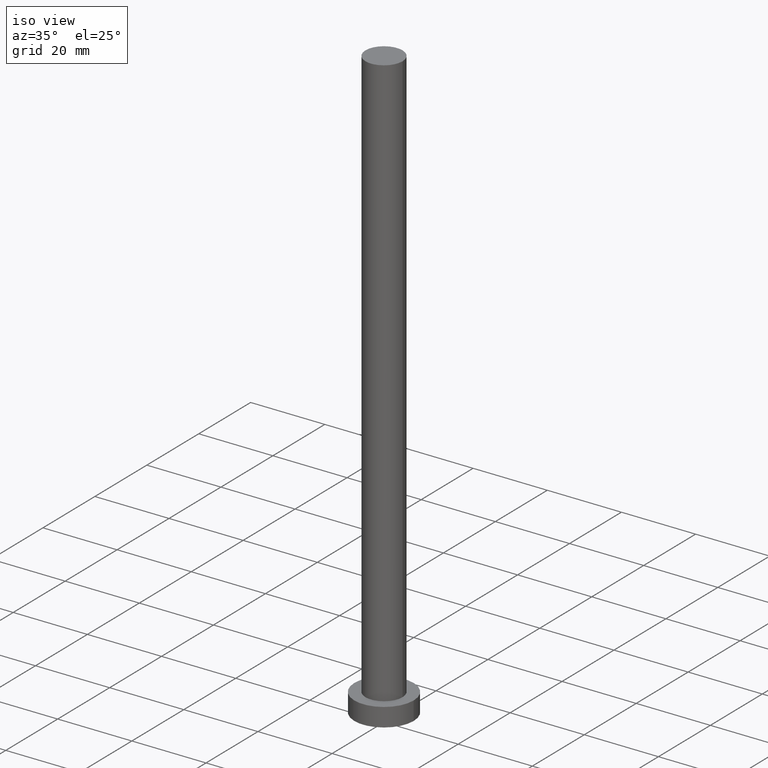
[diagram: clean part render]
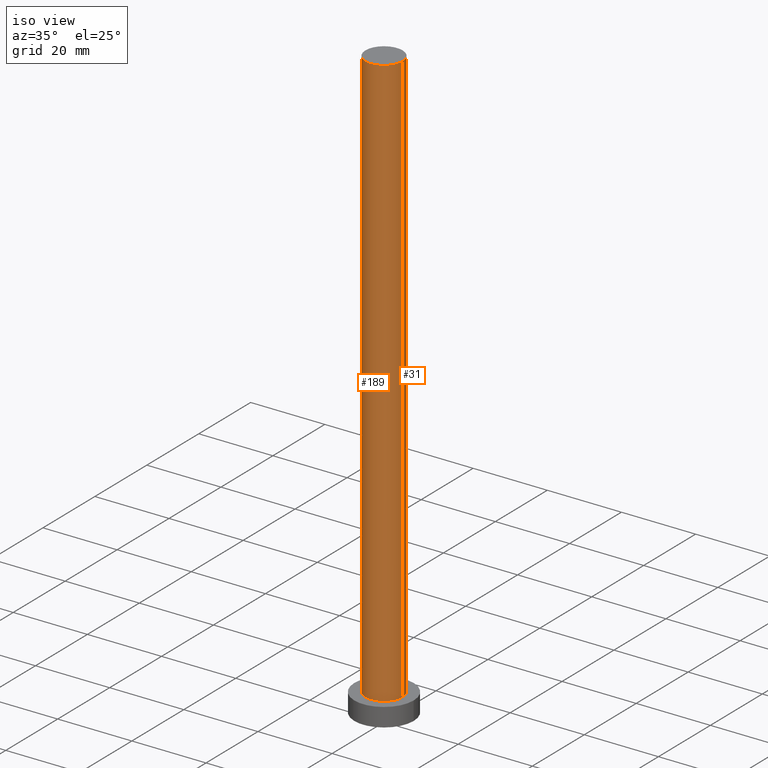
[diagram: same view with one multi-face feature highlighted, each face labeled with its STEP entity id]
A machine part, iso view. The highlighted faces form ONE feature: a constant-radius fillet chain: 2 tangent blend faces with common blend radius 5 mm. The faces share edges in the B-rep.
Their STEP definitions:
[1] entity #189 (Cylinder):
#5 = EDGE_CURVE ( 'NONE', #34, #15, #30, .T. ) ;
#6 = VECTOR ( 'NONE', #188, 1000.000000000000000 ) ;
#15 = VERTEX_POINT ( 'NONE', #178 ) ;
#23 = EDGE_LOOP ( 'NONE', ( #68, #88, #181, #101 ) ) ;
#25 = AXIS2_PLACEMENT_3D ( 'NONE', #97, #152, #146 ) ;
#30 = CIRCLE ( 'NONE', #87, 5.000000000000000000 ) ;
#34 = VERTEX_POINT ( 'NONE', #72 ) ;
#37 = CARTESIAN_POINT ( 'NONE',  ( 0.000000000000000000, 0.000000000000000000, 160.0000000000000000 ) ) ;
#44 = CYLINDRICAL_SURFACE ( 'NONE', #250, 5.000000000000000000 ) ;
#58 = CARTESIAN_POINT ( 'NONE',  ( 5.000000000000000000, 6.123233995736766282E-16, 5.000000000000000000 ) ) ;
#61 = LINE ( 'NONE', #233, #6 ) ;
#65 = EDGE_CURVE ( 'NONE', #34, #201, #222, .T. ) ;
#68 = ORIENTED_EDGE ( 'NONE', *, *, #247, .F. ) ;
#72 = CARTESIAN_POINT ( 'NONE',  ( -5.000000000000000000, 0.000000000000000000, 160.0000000000000000 ) ) ;
#87 = AXIS2_PLACEMENT_3D ( 'NONE', #37, #254, #204 ) ;
#88 = ORIENTED_EDGE ( 'NONE', *, *, #5, .F. ) ;
#97 = CARTESIAN_POINT ( 'NONE',  ( 0.000000000000000000, 0.000000000000000000, 5.000000000000000000 ) ) ;
#101 = ORIENTED_EDGE ( 'NONE', *, *, #130, .T. ) ;
#124 = DIRECTION ( 'NONE',  ( -0.000000000000000000, -0.000000000000000000, -1.000000000000000000 ) ) ;
#130 = EDGE_CURVE ( 'NONE', #201, #243, #255, .T. ) ;
#146 = DIRECTION ( 'NONE',  ( 1.000000000000000000, 0.000000000000000000, 0.000000000000000000 ) ) ;
#150 = CARTESIAN_POINT ( 'NONE',  ( 0.000000000000000000, 0.000000000000000000, 160.0000000000000000 ) ) ;
#151 = CARTESIAN_POINT ( 'NONE',  ( -5.000000000000000000, 0.000000000000000000, 5.000000000000000000 ) ) ;
#152 = DIRECTION ( 'NONE',  ( 0.000000000000000000, 0.000000000000000000, 1.000000000000000000 ) ) ;
#166 = FACE_OUTER_BOUND ( 'NONE', #23, .T. ) ;
#176 = VECTOR ( 'NONE', #124, 1000.000000000000000 ) ;
#178 = CARTESIAN_POINT ( 'NONE',  ( 5.000000000000000000, 6.123233995736766282E-16, 160.0000000000000000 ) ) ;
#181 = ORIENTED_EDGE ( 'NONE', *, *, #65, .T. ) ;
#188 = DIRECTION ( 'NONE',  ( -0.000000000000000000, -0.000000000000000000, -1.000000000000000000 ) ) ;
#189 = ADVANCED_FACE ( 'NONE', ( #166 ), #44, .T. ) ;
#201 = VERTEX_POINT ( 'NONE', #151 ) ;
#204 = DIRECTION ( 'NONE',  ( 1.000000000000000000, 0.000000000000000000, 0.000000000000000000 ) ) ;
#222 = LINE ( 'NONE', #225, #176 ) ;
#225 = CARTESIAN_POINT ( 'NONE',  ( -5.000000000000000000, 0.000000000000000000, 160.0000000000000000 ) ) ;
#228 = DIRECTION ( 'NONE',  ( -0.000000000000000000, -0.000000000000000000, -1.000000000000000000 ) ) ;
#229 = DIRECTION ( 'NONE',  ( -1.000000000000000000, 0.000000000000000000, 0.000000000000000000 ) ) ;
#233 = CARTESIAN_POINT ( 'NONE',  ( 5.000000000000000000, 6.123233995736766282E-16, 160.0000000000000000 ) ) ;
#243 = VERTEX_POINT ( 'NONE', #58 ) ;
#247 = EDGE_CURVE ( 'NONE', #15, #243, #61, .T. ) ;
#250 = AXIS2_PLACEMENT_3D ( 'NONE', #150, #228, #229 ) ;
#254 = DIRECTION ( 'NONE',  ( 0.000000000000000000, 0.000000000000000000, 1.000000000000000000 ) ) ;
#255 = CIRCLE ( 'NONE', #25, 5.000000000000000000 ) ;
[2] entity #31 (Cylinder):
#6 = VECTOR ( 'NONE', #188, 1000.000000000000000 ) ;
#15 = VERTEX_POINT ( 'NONE', #178 ) ;
#21 = CARTESIAN_POINT ( 'NONE',  ( 0.000000000000000000, 0.000000000000000000, 160.0000000000000000 ) ) ;
#31 = ADVANCED_FACE ( 'NONE', ( #145 ), #128, .T. ) ;
#34 = VERTEX_POINT ( 'NONE', #72 ) ;
#36 = DIRECTION ( 'NONE',  ( 1.000000000000000000, 0.000000000000000000, 0.000000000000000000 ) ) ;
#41 = CARTESIAN_POINT ( 'NONE',  ( 0.000000000000000000, 0.000000000000000000, 160.0000000000000000 ) ) ;
#58 = CARTESIAN_POINT ( 'NONE',  ( 5.000000000000000000, 6.123233995736766282E-16, 5.000000000000000000 ) ) ;
#61 = LINE ( 'NONE', #233, #6 ) ;
#65 = EDGE_CURVE ( 'NONE', #34, #201, #222, .T. ) ;
#72 = CARTESIAN_POINT ( 'NONE',  ( -5.000000000000000000, 0.000000000000000000, 160.0000000000000000 ) ) ;
#75 = ORIENTED_EDGE ( 'NONE', *, *, #79, .F. ) ;
#79 = EDGE_CURVE ( 'NONE', #15, #34, #216, .T. ) ;
#109 = AXIS2_PLACEMENT_3D ( 'NONE', #21, #200, #36 ) ;
#115 = DIRECTION ( 'NONE',  ( 1.000000000000000000, 0.000000000000000000, 0.000000000000000000 ) ) ;
#116 = CARTESIAN_POINT ( 'NONE',  ( 0.000000000000000000, 0.000000000000000000, 5.000000000000000000 ) ) ;
#118 = AXIS2_PLACEMENT_3D ( 'NONE', #41, #252, #251 ) ;
#124 = DIRECTION ( 'NONE',  ( -0.000000000000000000, -0.000000000000000000, -1.000000000000000000 ) ) ;
#126 = AXIS2_PLACEMENT_3D ( 'NONE', #116, #184, #115 ) ;
#128 = CYLINDRICAL_SURFACE ( 'NONE', #118, 5.000000000000000000 ) ;
#143 = ORIENTED_EDGE ( 'NONE', *, *, #247, .T. ) ;
#145 = FACE_OUTER_BOUND ( 'NONE', #246, .T. ) ;
#151 = CARTESIAN_POINT ( 'NONE',  ( -5.000000000000000000, 0.000000000000000000, 5.000000000000000000 ) ) ;
#176 = VECTOR ( 'NONE', #124, 1000.000000000000000 ) ;
#178 = CARTESIAN_POINT ( 'NONE',  ( 5.000000000000000000, 6.123233995736766282E-16, 160.0000000000000000 ) ) ;
#184 = DIRECTION ( 'NONE',  ( 0.000000000000000000, 0.000000000000000000, 1.000000000000000000 ) ) ;
#188 = DIRECTION ( 'NONE',  ( -0.000000000000000000, -0.000000000000000000, -1.000000000000000000 ) ) ;
#196 = ORIENTED_EDGE ( 'NONE', *, *, #211, .T. ) ;
#200 = DIRECTION ( 'NONE',  ( 0.000000000000000000, 0.000000000000000000, 1.000000000000000000 ) ) ;
#201 = VERTEX_POINT ( 'NONE', #151 ) ;
#211 = EDGE_CURVE ( 'NONE', #243, #201, #232, .T. ) ;
#216 = CIRCLE ( 'NONE', #109, 5.000000000000000000 ) ;
#222 = LINE ( 'NONE', #225, #176 ) ;
#225 = CARTESIAN_POINT ( 'NONE',  ( -5.000000000000000000, 0.000000000000000000, 160.0000000000000000 ) ) ;
#232 = CIRCLE ( 'NONE', #126, 5.000000000000000000 ) ;
#233 = CARTESIAN_POINT ( 'NONE',  ( 5.000000000000000000, 6.123233995736766282E-16, 160.0000000000000000 ) ) ;
#238 = ORIENTED_EDGE ( 'NONE', *, *, #65, .F. ) ;
#243 = VERTEX_POINT ( 'NONE', #58 ) ;
#246 = EDGE_LOOP ( 'NONE', ( #75, #143, #196, #238 ) ) ;
#247 = EDGE_CURVE ( 'NONE', #15, #243, #61, .T. ) ;
#251 = DIRECTION ( 'NONE',  ( -1.000000000000000000, 0.000000000000000000, 0.000000000000000000 ) ) ;
#252 = DIRECTION ( 'NONE',  ( -0.000000000000000000, -0.000000000000000000, -1.000000000000000000 ) ) ;